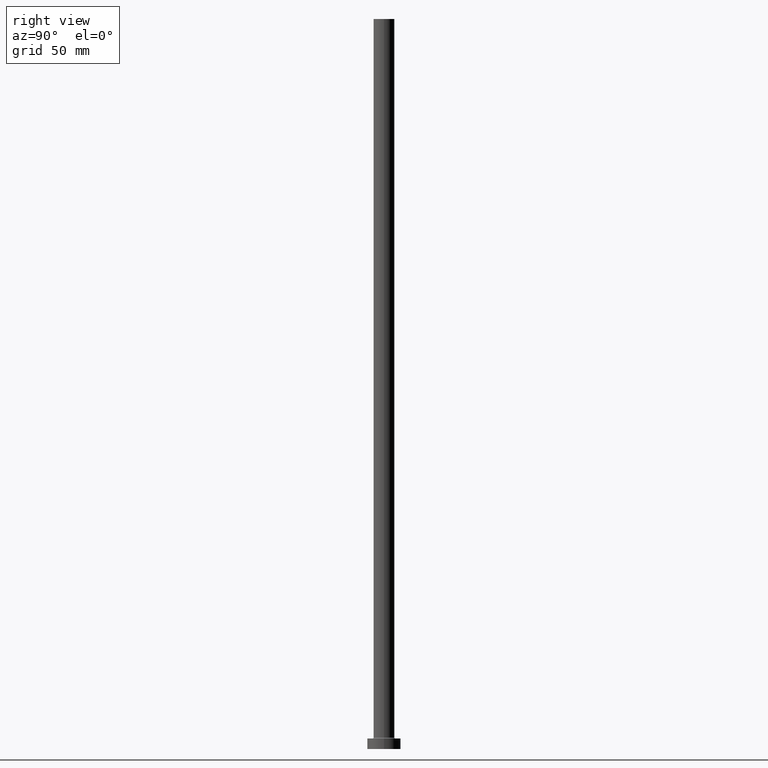
[diagram: clean part render]
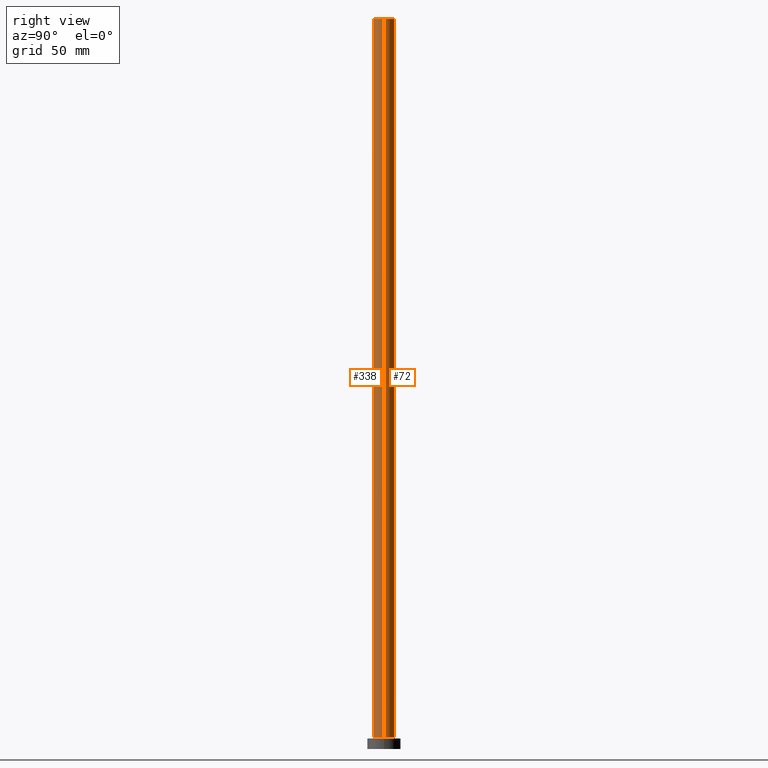
[diagram: same view with one multi-face feature highlighted, each face labeled with its STEP entity id]
A machine part, right view. The highlighted faces form ONE feature: a constant-radius fillet chain: 2 tangent blend faces with common blend radius 5 mm. The faces share edges in the B-rep.
Their STEP definitions:
[1] entity #72 (Cylinder):
#4 = ORIENTED_EDGE ( 'NONE', *, *, #405, .F. ) ;
#5 = AXIS2_PLACEMENT_3D ( 'NONE', #430, #455, #117 ) ;
#7 = CYLINDRICAL_SURFACE ( 'NONE', #387, 5.000000000000000000 ) ;
#10 = CIRCLE ( 'NONE', #5, 5.000000000000000000 ) ;
#26 = VERTEX_POINT ( 'NONE', #331 ) ;
#27 = LINE ( 'NONE', #68, #368 ) ;
#31 = DIRECTION ( 'NONE',  ( -0.000000000000000000, -0.000000000000000000, -1.000000000000000000 ) ) ;
#41 = CIRCLE ( 'NONE', #311, 5.000000000000000000 ) ;
#49 = ORIENTED_EDGE ( 'NONE', *, *, #199, .T. ) ;
#57 = EDGE_CURVE ( 'NONE', #384, #118, #10, .T. ) ;
#61 = VECTOR ( 'NONE', #167, 1000.000000000000000 ) ;
#68 = CARTESIAN_POINT ( 'NONE',  ( -5.000000000000000000, 0.000000000000000000, 350.0000000000000000 ) ) ;
#72 = ADVANCED_FACE ( 'NONE', ( #363 ), #7, .T. ) ;
#74 = CARTESIAN_POINT ( 'NONE',  ( 5.000000000000000000, 6.123233995736766282E-16, 350.0000000000000000 ) ) ;
#108 = CARTESIAN_POINT ( 'NONE',  ( -5.000000000000000000, 0.000000000000000000, 350.0000000000000000 ) ) ;
#117 = DIRECTION ( 'NONE',  ( 1.000000000000000000, 0.000000000000000000, 0.000000000000000000 ) ) ;
#118 = VERTEX_POINT ( 'NONE', #108 ) ;
#167 = DIRECTION ( 'NONE',  ( -0.000000000000000000, -0.000000000000000000, -1.000000000000000000 ) ) ;
#199 = EDGE_CURVE ( 'NONE', #384, #212, #432, .T. ) ;
#206 = CARTESIAN_POINT ( 'NONE',  ( 5.000000000000000000, 6.123233995736766282E-16, 350.0000000000000000 ) ) ;
#212 = VERTEX_POINT ( 'NONE', #314 ) ;
#269 = ORIENTED_EDGE ( 'NONE', *, *, #57, .F. ) ;
#271 = DIRECTION ( 'NONE',  ( -0.000000000000000000, -0.000000000000000000, -1.000000000000000000 ) ) ;
#309 = DIRECTION ( 'NONE',  ( 0.000000000000000000, 0.000000000000000000, 1.000000000000000000 ) ) ;
#310 = ORIENTED_EDGE ( 'NONE', *, *, #391, .T. ) ;
#311 = AXIS2_PLACEMENT_3D ( 'NONE', #392, #309, #386 ) ;
#314 = CARTESIAN_POINT ( 'NONE',  ( 5.000000000000000000, 6.123233995736766282E-16, 5.500000000000005329 ) ) ;
#331 = CARTESIAN_POINT ( 'NONE',  ( -5.000000000000000000, 0.000000000000000000, 5.500000000000005329 ) ) ;
#363 = FACE_OUTER_BOUND ( 'NONE', #413, .T. ) ;
#368 = VECTOR ( 'NONE', #31, 1000.000000000000000 ) ;
#384 = VERTEX_POINT ( 'NONE', #74 ) ;
#386 = DIRECTION ( 'NONE',  ( 1.000000000000000000, 0.000000000000000000, 0.000000000000000000 ) ) ;
#387 = AXIS2_PLACEMENT_3D ( 'NONE', #434, #271, #418 ) ;
#391 = EDGE_CURVE ( 'NONE', #212, #26, #41, .T. ) ;
#392 = CARTESIAN_POINT ( 'NONE',  ( 0.000000000000000000, 0.000000000000000000, 5.500000000000005329 ) ) ;
#405 = EDGE_CURVE ( 'NONE', #118, #26, #27, .T. ) ;
#413 = EDGE_LOOP ( 'NONE', ( #269, #49, #310, #4 ) ) ;
#418 = DIRECTION ( 'NONE',  ( -1.000000000000000000, 0.000000000000000000, 0.000000000000000000 ) ) ;
#430 = CARTESIAN_POINT ( 'NONE',  ( 0.000000000000000000, 0.000000000000000000, 350.0000000000000000 ) ) ;
#432 = LINE ( 'NONE', #206, #61 ) ;
#434 = CARTESIAN_POINT ( 'NONE',  ( 0.000000000000000000, 0.000000000000000000, 350.0000000000000000 ) ) ;
#455 = DIRECTION ( 'NONE',  ( 0.000000000000000000, 0.000000000000000000, 1.000000000000000000 ) ) ;
[2] entity #338 (Cylinder):
#26 = VERTEX_POINT ( 'NONE', #331 ) ;
#27 = LINE ( 'NONE', #68, #368 ) ;
#31 = DIRECTION ( 'NONE',  ( -0.000000000000000000, -0.000000000000000000, -1.000000000000000000 ) ) ;
#36 = DIRECTION ( 'NONE',  ( -0.000000000000000000, -0.000000000000000000, -1.000000000000000000 ) ) ;
#54 = EDGE_LOOP ( 'NONE', ( #346, #97, #339, #132 ) ) ;
#61 = VECTOR ( 'NONE', #167, 1000.000000000000000 ) ;
#64 = DIRECTION ( 'NONE',  ( 1.000000000000000000, 0.000000000000000000, 0.000000000000000000 ) ) ;
#68 = CARTESIAN_POINT ( 'NONE',  ( -5.000000000000000000, 0.000000000000000000, 350.0000000000000000 ) ) ;
#74 = CARTESIAN_POINT ( 'NONE',  ( 5.000000000000000000, 6.123233995736766282E-16, 350.0000000000000000 ) ) ;
#96 = DIRECTION ( 'NONE',  ( -1.000000000000000000, 0.000000000000000000, 0.000000000000000000 ) ) ;
#97 = ORIENTED_EDGE ( 'NONE', *, *, #255, .F. ) ;
#108 = CARTESIAN_POINT ( 'NONE',  ( -5.000000000000000000, 0.000000000000000000, 350.0000000000000000 ) ) ;
#118 = VERTEX_POINT ( 'NONE', #108 ) ;
#119 = CARTESIAN_POINT ( 'NONE',  ( 0.000000000000000000, 0.000000000000000000, 350.0000000000000000 ) ) ;
#120 = AXIS2_PLACEMENT_3D ( 'NONE', #352, #130, #64 ) ;
#130 = DIRECTION ( 'NONE',  ( 0.000000000000000000, 0.000000000000000000, 1.000000000000000000 ) ) ;
#132 = ORIENTED_EDGE ( 'NONE', *, *, #390, .T. ) ;
#163 = AXIS2_PLACEMENT_3D ( 'NONE', #119, #214, #283 ) ;
#167 = DIRECTION ( 'NONE',  ( -0.000000000000000000, -0.000000000000000000, -1.000000000000000000 ) ) ;
#181 = CIRCLE ( 'NONE', #163, 5.000000000000000000 ) ;
#199 = EDGE_CURVE ( 'NONE', #384, #212, #432, .T. ) ;
#206 = CARTESIAN_POINT ( 'NONE',  ( 5.000000000000000000, 6.123233995736766282E-16, 350.0000000000000000 ) ) ;
#212 = VERTEX_POINT ( 'NONE', #314 ) ;
#214 = DIRECTION ( 'NONE',  ( 0.000000000000000000, 0.000000000000000000, 1.000000000000000000 ) ) ;
#246 = CIRCLE ( 'NONE', #120, 5.000000000000000000 ) ;
#255 = EDGE_CURVE ( 'NONE', #118, #384, #181, .T. ) ;
#275 = CYLINDRICAL_SURFACE ( 'NONE', #327, 5.000000000000000000 ) ;
#283 = DIRECTION ( 'NONE',  ( 1.000000000000000000, 0.000000000000000000, 0.000000000000000000 ) ) ;
#314 = CARTESIAN_POINT ( 'NONE',  ( 5.000000000000000000, 6.123233995736766282E-16, 5.500000000000005329 ) ) ;
#327 = AXIS2_PLACEMENT_3D ( 'NONE', #360, #36, #96 ) ;
#331 = CARTESIAN_POINT ( 'NONE',  ( -5.000000000000000000, 0.000000000000000000, 5.500000000000005329 ) ) ;
#338 = ADVANCED_FACE ( 'NONE', ( #394 ), #275, .T. ) ;
#339 = ORIENTED_EDGE ( 'NONE', *, *, #405, .T. ) ;
#346 = ORIENTED_EDGE ( 'NONE', *, *, #199, .F. ) ;
#352 = CARTESIAN_POINT ( 'NONE',  ( 0.000000000000000000, 0.000000000000000000, 5.500000000000005329 ) ) ;
#360 = CARTESIAN_POINT ( 'NONE',  ( 0.000000000000000000, 0.000000000000000000, 350.0000000000000000 ) ) ;
#368 = VECTOR ( 'NONE', #31, 1000.000000000000000 ) ;
#384 = VERTEX_POINT ( 'NONE', #74 ) ;
#390 = EDGE_CURVE ( 'NONE', #26, #212, #246, .T. ) ;
#394 = FACE_OUTER_BOUND ( 'NONE', #54, .T. ) ;
#405 = EDGE_CURVE ( 'NONE', #118, #26, #27, .T. ) ;
#432 = LINE ( 'NONE', #206, #61 ) ;